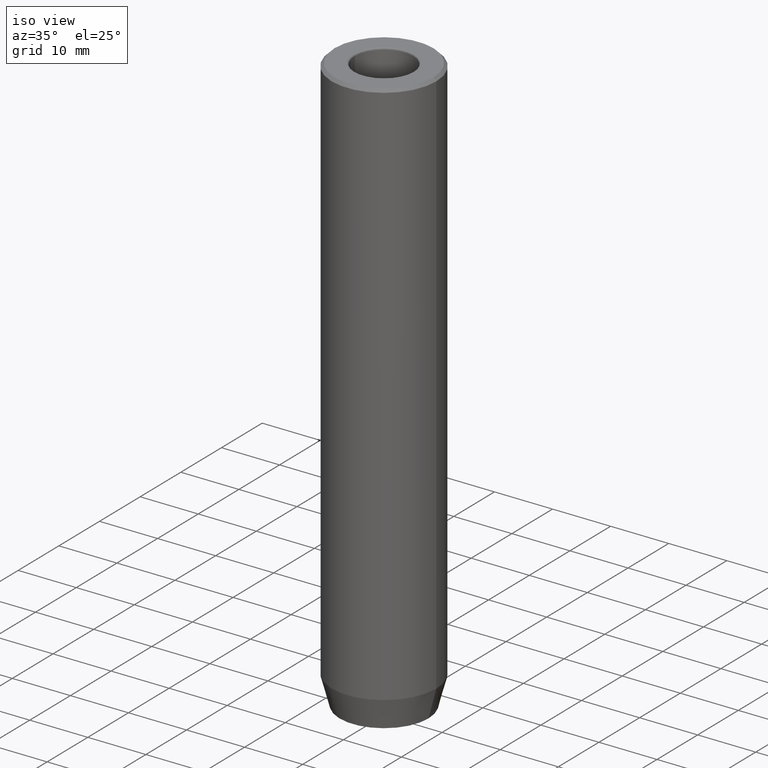
[diagram: clean part render]
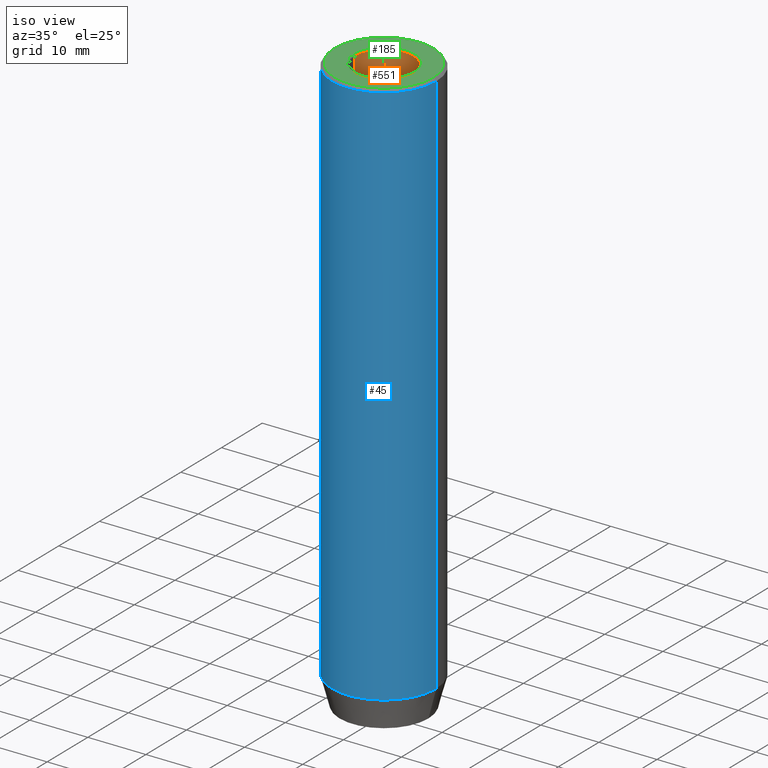
[diagram: same view with three faces highlighted in distinct colors, each labeled with its STEP entity id]
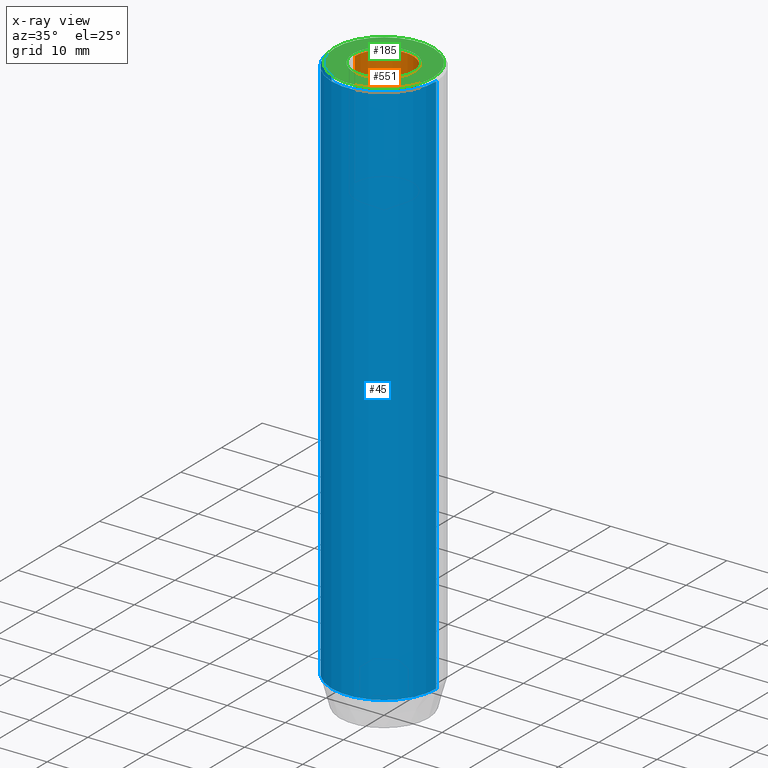
[diagram: x-ray of the same camera — body ghosted, the three highlighted faces saturated]
A machine part, iso view with three faces highlighted in distinct colors.
The next image is the same camera in x-ray (body ghosted, the three faces saturated) — at least one of them is partly hidden behind the body in this view.
Their STEP definitions:

[orange] entity #551 — the highlighted cylindrical surface (edge-blend (fillet) strip) has radius 5 mm, axis along (-0, -0, 1).
#20 = CARTESIAN_POINT ( 'NONE',  ( -4.999999999999997335, 6.123233995736763324E-16, -0.2999999999999999889 ) ) ;
#39 = EDGE_LOOP ( 'NONE', ( #169, #91, #140, #46 ) ) ;
#46 = ORIENTED_EDGE ( 'NONE', *, *, #378, .T. ) ;
#72 = VERTEX_POINT ( 'NONE', #381 ) ;
#91 = ORIENTED_EDGE ( 'NONE', *, *, #562, .F. ) ;
#109 = EDGE_CURVE ( 'NONE', #631, #283, #453, .T. ) ;
#121 = AXIS2_PLACEMENT_3D ( 'NONE', #474, #429, #373 ) ;
#140 = ORIENTED_EDGE ( 'NONE', *, *, #109, .T. ) ;
#158 = CARTESIAN_POINT ( 'NONE',  ( 0.000000000000000000, 0.000000000000000000, -20.00000000000000000 ) ) ;
#164 = LINE ( 'NONE', #215, #351 ) ;
#169 = ORIENTED_EDGE ( 'NONE', *, *, #430, .F. ) ;
#215 = CARTESIAN_POINT ( 'NONE',  ( -4.999999999999997335, 6.123233995736763324E-16, 0.000000000000000000 ) ) ;
#245 = CARTESIAN_POINT ( 'NONE',  ( 4.999999999999997335, 0.000000000000000000, -0.2999999999999999889 ) ) ;
#264 = DIRECTION ( 'NONE',  ( -0.000000000000000000, -0.000000000000000000, 1.000000000000000000 ) ) ;
#273 = CARTESIAN_POINT ( 'NONE',  ( 4.999999999999997335, 0.000000000000000000, 0.000000000000000000 ) ) ;
#277 = AXIS2_PLACEMENT_3D ( 'NONE', #158, #300, #489 ) ;
#283 = VERTEX_POINT ( 'NONE', #245 ) ;
#300 = DIRECTION ( 'NONE',  ( -0.000000000000000000, -0.000000000000000000, 1.000000000000000000 ) ) ;
#318 = CIRCLE ( 'NONE', #121, 4.999999999999997335 ) ;
#324 = DIRECTION ( 'NONE',  ( -0.000000000000000000, -0.000000000000000000, 1.000000000000000000 ) ) ;
#339 = VECTOR ( 'NONE', #324, 1000.000000000000000 ) ;
#351 = VECTOR ( 'NONE', #264, 1000.000000000000000 ) ;
#373 = DIRECTION ( 'NONE',  ( 1.000000000000000000, 0.000000000000000000, 0.000000000000000000 ) ) ;
#378 = EDGE_CURVE ( 'NONE', #283, #432, #318, .T. ) ;
#381 = CARTESIAN_POINT ( 'NONE',  ( -4.999999999999995559, 6.123233995736761352E-16, -20.00000000000000000 ) ) ;
#429 = DIRECTION ( 'NONE',  ( -0.000000000000000000, -0.000000000000000000, 1.000000000000000000 ) ) ;
#430 = EDGE_CURVE ( 'NONE', #72, #432, #164, .T. ) ;
#432 = VERTEX_POINT ( 'NONE', #20 ) ;
#437 = FACE_OUTER_BOUND ( 'NONE', #39, .T. ) ;
#453 = LINE ( 'NONE', #273, #339 ) ;
#474 = CARTESIAN_POINT ( 'NONE',  ( 0.000000000000000000, 0.000000000000000000, -0.2999999999999999889 ) ) ;
#481 = DIRECTION ( 'NONE',  ( -0.000000000000000000, -0.000000000000000000, 1.000000000000000000 ) ) ;
#489 = DIRECTION ( 'NONE',  ( 1.000000000000000000, 0.000000000000000000, 0.000000000000000000 ) ) ;
#496 = AXIS2_PLACEMENT_3D ( 'NONE', #599, #481, #604 ) ;
#545 = CIRCLE ( 'NONE', #277, 4.999999999999995559 ) ;
#551 = ADVANCED_FACE ( 'NONE', ( #437 ), #613, .F. ) ;
#562 = EDGE_CURVE ( 'NONE', #631, #72, #545, .T. ) ;
#599 = CARTESIAN_POINT ( 'NONE',  ( 0.000000000000000000, 0.000000000000000000, 0.000000000000000000 ) ) ;
#604 = DIRECTION ( 'NONE',  ( 1.000000000000000000, 0.000000000000000000, 0.000000000000000000 ) ) ;
#612 = CARTESIAN_POINT ( 'NONE',  ( 4.999999999999995559, 0.000000000000000000, -20.00000000000000000 ) ) ;
#613 = CYLINDRICAL_SURFACE ( 'NONE', #496, 4.999999999999997335 ) ;
#631 = VERTEX_POINT ( 'NONE', #612 ) ;

[blue] entity #45 — the highlighted cylindrical surface (partial cylindrical patch) has radius 9 mm, axis along (-0, -0, 1).
#9 = CARTESIAN_POINT ( 'NONE',  ( -9.000000000000000000, 1.102182119232617714E-15, 0.000000000000000000 ) ) ;
#45 = ADVANCED_FACE ( 'NONE', ( #329 ), #539, .T. ) ;
#64 = VERTEX_POINT ( 'NONE', #316 ) ;
#78 = ORIENTED_EDGE ( 'NONE', *, *, #622, .T. ) ;
#79 = CARTESIAN_POINT ( 'NONE',  ( 0.000000000000000000, 0.000000000000000000, -0.5000000000000091038 ) ) ;
#105 = CIRCLE ( 'NONE', #333, 9.000000000000000000 ) ;
#108 = CARTESIAN_POINT ( 'NONE',  ( 0.000000000000000000, 0.000000000000000000, 0.000000000000000000 ) ) ;
#115 = AXIS2_PLACEMENT_3D ( 'NONE', #108, #601, #482 ) ;
#118 = CARTESIAN_POINT ( 'NONE',  ( 0.000000000000000000, 0.000000000000000000, -95.00000000000000000 ) ) ;
#171 = VECTOR ( 'NONE', #246, 1000.000000000000000 ) ;
#214 = ORIENTED_EDGE ( 'NONE', *, *, #639, .T. ) ;
#224 = DIRECTION ( 'NONE',  ( 0.000000000000000000, 0.000000000000000000, -1.000000000000000000 ) ) ;
#234 = ORIENTED_EDGE ( 'NONE', *, *, #475, .T. ) ;
#240 = DIRECTION ( 'NONE',  ( -0.000000000000000000, -0.000000000000000000, 1.000000000000000000 ) ) ;
#246 = DIRECTION ( 'NONE',  ( -0.000000000000000000, -0.000000000000000000, 1.000000000000000000 ) ) ;
#267 = DIRECTION ( 'NONE',  ( -0.000000000000000000, -0.000000000000000000, 1.000000000000000000 ) ) ;
#298 = VERTEX_POINT ( 'NONE', #531 ) ;
#304 = ORIENTED_EDGE ( 'NONE', *, *, #331, .F. ) ;
#316 = CARTESIAN_POINT ( 'NONE',  ( -9.000000000000000000, 1.102182119232617714E-15, -0.5000000000000091038 ) ) ;
#329 = FACE_OUTER_BOUND ( 'NONE', #520, .T. ) ;
#331 = EDGE_CURVE ( 'NONE', #413, #64, #528, .T. ) ;
#333 = AXIS2_PLACEMENT_3D ( 'NONE', #79, #224, #568 ) ;
#360 = VERTEX_POINT ( 'NONE', #508 ) ;
#413 = VERTEX_POINT ( 'NONE', #422 ) ;
#422 = CARTESIAN_POINT ( 'NONE',  ( -9.000000000000000000, 1.102182119232617714E-15, -95.00000000000000000 ) ) ;
#475 = EDGE_CURVE ( 'NONE', #360, #298, #578, .T. ) ;
#476 = VECTOR ( 'NONE', #240, 1000.000000000000000 ) ;
#482 = DIRECTION ( 'NONE',  ( 1.000000000000000000, 0.000000000000000000, 0.000000000000000000 ) ) ;
#508 = CARTESIAN_POINT ( 'NONE',  ( 9.000000000000000000, 0.000000000000000000, -95.00000000000000000 ) ) ;
#520 = EDGE_LOOP ( 'NONE', ( #304, #78, #234, #214 ) ) ;
#528 = LINE ( 'NONE', #9, #171 ) ;
#531 = CARTESIAN_POINT ( 'NONE',  ( 9.000000000000000000, 0.000000000000000000, -0.5000000000000091038 ) ) ;
#539 = CYLINDRICAL_SURFACE ( 'NONE', #115, 9.000000000000000000 ) ;
#561 = CIRCLE ( 'NONE', #633, 9.000000000000000000 ) ;
#568 = DIRECTION ( 'NONE',  ( 1.000000000000000000, 0.000000000000000000, 0.000000000000000000 ) ) ;
#570 = CARTESIAN_POINT ( 'NONE',  ( 9.000000000000000000, 0.000000000000000000, 0.000000000000000000 ) ) ;
#578 = LINE ( 'NONE', #570, #476 ) ;
#601 = DIRECTION ( 'NONE',  ( -0.000000000000000000, -0.000000000000000000, 1.000000000000000000 ) ) ;
#621 = DIRECTION ( 'NONE',  ( 1.000000000000000000, 0.000000000000000000, 0.000000000000000000 ) ) ;
#622 = EDGE_CURVE ( 'NONE', #413, #360, #561, .T. ) ;
#633 = AXIS2_PLACEMENT_3D ( 'NONE', #118, #267, #621 ) ;
#639 = EDGE_CURVE ( 'NONE', #298, #64, #105, .T. ) ;

[green] entity #185 — the highlighted planar face has unit normal (0, -0, 1).
#1 = DIRECTION ( 'NONE',  ( -0.000000000000000000, -0.000000000000000000, 1.000000000000000000 ) ) ;
#3 = CARTESIAN_POINT ( 'NONE',  ( 0.000000000000000000, 0.000000000000000000, 0.000000000000000000 ) ) ;
#14 = DIRECTION ( 'NONE',  ( 1.000000000000000000, 0.000000000000000000, 0.000000000000000000 ) ) ;
#25 = ORIENTED_EDGE ( 'NONE', *, *, #37, .T. ) ;
#37 = EDGE_CURVE ( 'NONE', #600, #133, #209, .T. ) ;
#86 = DIRECTION ( 'NONE',  ( 1.000000000000000000, 0.000000000000000000, 0.000000000000000000 ) ) ;
#93 = EDGE_CURVE ( 'NONE', #133, #600, #361, .T. ) ;
#117 = CARTESIAN_POINT ( 'NONE',  ( 5.299999999999997158, 0.000000000000000000, 0.000000000000000000 ) ) ;
#133 = VERTEX_POINT ( 'NONE', #312 ) ;
#139 = EDGE_CURVE ( 'NONE', #424, #268, #609, .T. ) ;
#146 = EDGE_CURVE ( 'NONE', #268, #424, #367, .T. ) ;
#151 = AXIS2_PLACEMENT_3D ( 'NONE', #278, #1, #14 ) ;
#173 = CARTESIAN_POINT ( 'NONE',  ( 8.499999999999980460, 1.071565949253932744E-15, 0.000000000000000000 ) ) ;
#176 = DIRECTION ( 'NONE',  ( 0.000000000000000000, 0.000000000000000000, -1.000000000000000000 ) ) ;
#177 = AXIS2_PLACEMENT_3D ( 'NONE', #343, #176, #275 ) ;
#185 = ADVANCED_FACE ( 'NONE', ( #398, #471 ), #205, .T. ) ;
#195 = DIRECTION ( 'NONE',  ( 0.000000000000000000, -0.000000000000000000, 1.000000000000000000 ) ) ;
#205 = PLANE ( 'NONE',  #596 ) ;
#209 = CIRCLE ( 'NONE', #565, 5.299999999999997158 ) ;
#230 = DIRECTION ( 'NONE',  ( -0.000000000000000000, -0.000000000000000000, 1.000000000000000000 ) ) ;
#268 = VERTEX_POINT ( 'NONE', #173 ) ;
#275 = DIRECTION ( 'NONE',  ( 1.000000000000000000, 0.000000000000000000, 0.000000000000000000 ) ) ;
#278 = CARTESIAN_POINT ( 'NONE',  ( 0.000000000000000000, 0.000000000000000000, 0.000000000000000000 ) ) ;
#291 = DIRECTION ( 'NONE',  ( 1.000000000000000000, 0.000000000000000000, 0.000000000000000000 ) ) ;
#297 = CARTESIAN_POINT ( 'NONE',  ( 0.000000000000000000, 0.000000000000000000, 0.000000000000000000 ) ) ;
#312 = CARTESIAN_POINT ( 'NONE',  ( -5.299999999999997158, 6.490628035480969952E-16, 0.000000000000000000 ) ) ;
#343 = CARTESIAN_POINT ( 'NONE',  ( 0.000000000000000000, 0.000000000000000000, 0.000000000000000000 ) ) ;
#361 = CIRCLE ( 'NONE', #177, 5.299999999999997158 ) ;
#367 = CIRCLE ( 'NONE', #151, 8.499999999999980460 ) ;
#370 = DIRECTION ( 'NONE',  ( 1.000000000000000000, 0.000000000000000000, 0.000000000000000000 ) ) ;
#388 = EDGE_LOOP ( 'NONE', ( #25, #459 ) ) ;
#398 = FACE_BOUND ( 'NONE', #388, .T. ) ;
#407 = EDGE_LOOP ( 'NONE', ( #550, #627 ) ) ;
#424 = VERTEX_POINT ( 'NONE', #616 ) ;
#459 = ORIENTED_EDGE ( 'NONE', *, *, #93, .T. ) ;
#471 = FACE_OUTER_BOUND ( 'NONE', #407, .T. ) ;
#504 = CARTESIAN_POINT ( 'NONE',  ( 0.000000000000000000, 0.000000000000000000, 0.000000000000000000 ) ) ;
#530 = DIRECTION ( 'NONE',  ( 0.000000000000000000, 0.000000000000000000, -1.000000000000000000 ) ) ;
#550 = ORIENTED_EDGE ( 'NONE', *, *, #139, .T. ) ;
#565 = AXIS2_PLACEMENT_3D ( 'NONE', #297, #530, #370 ) ;
#572 = AXIS2_PLACEMENT_3D ( 'NONE', #504, #230, #86 ) ;
#596 = AXIS2_PLACEMENT_3D ( 'NONE', #3, #195, #291 ) ;
#600 = VERTEX_POINT ( 'NONE', #117 ) ;
#609 = CIRCLE ( 'NONE', #572, 8.499999999999980460 ) ;
#616 = CARTESIAN_POINT ( 'NONE',  ( -8.499999999999980460, 0.000000000000000000, 0.000000000000000000 ) ) ;
#627 = ORIENTED_EDGE ( 'NONE', *, *, #146, .T. ) ;